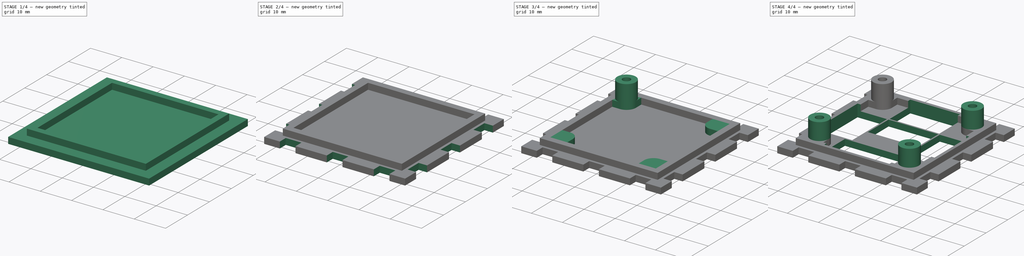
[diagram: build sequence overview — one tinted view per stage of 4, left to right]
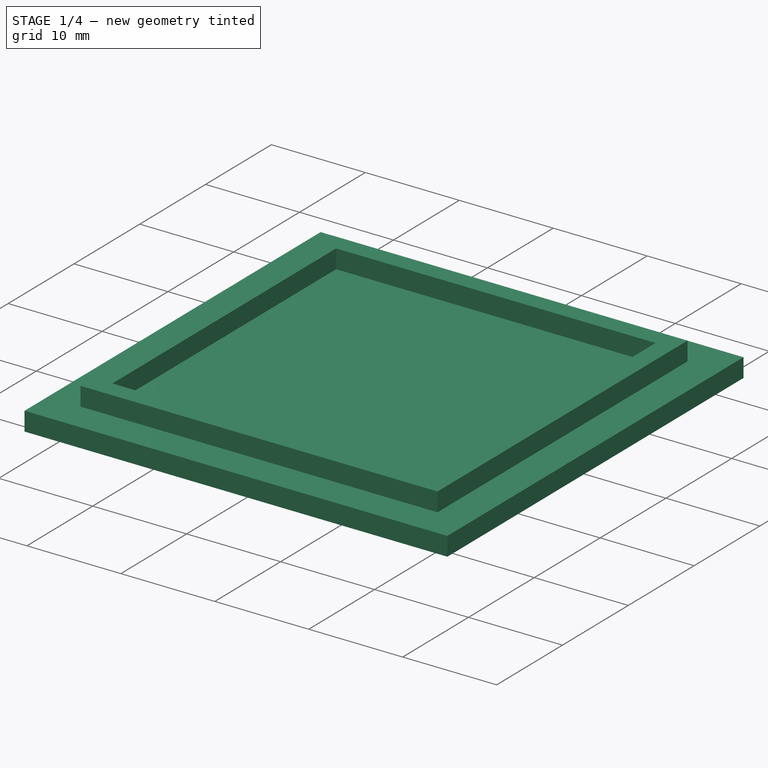
[diagram: stage 1 of 4 — iso view after this stage's code; geometry added in this stage tinted green]
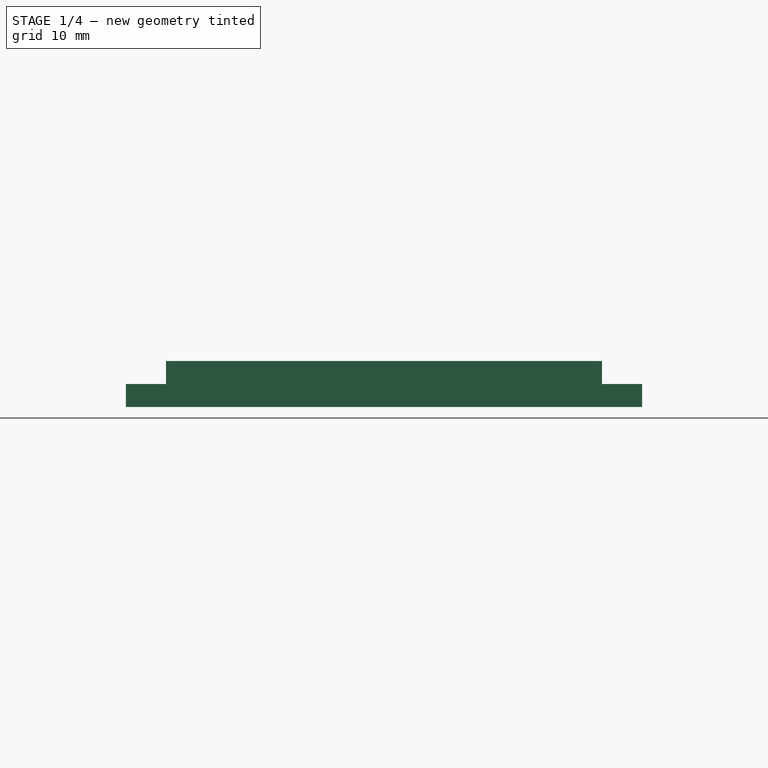
[diagram: stage 1 of 4 — front view after this stage's code; geometry added in this stage tinted green]
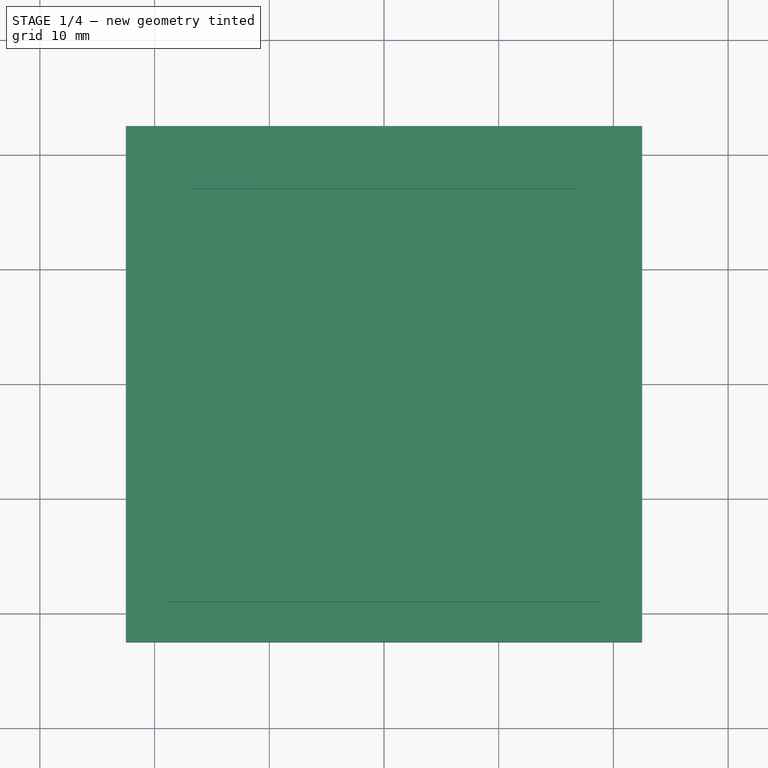
[diagram: stage 1 of 4 — top view after this stage's code; geometry added in this stage tinted green]
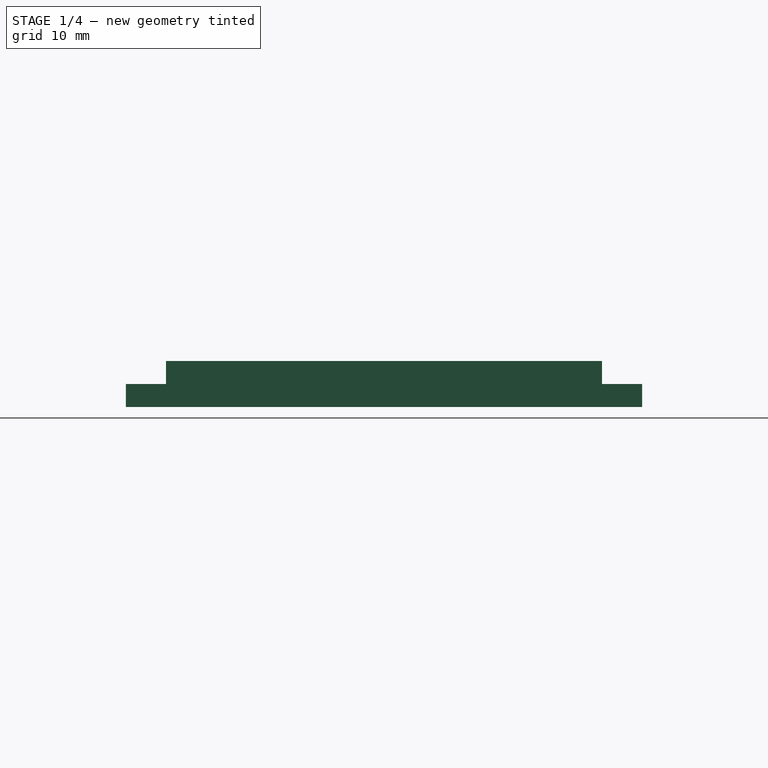
[diagram: stage 1 of 4 — right view after this stage's code; geometry added in this stage tinted green]
FCSTD DOCUMENT  (FreeCAD 0.16R6710 (Git))
Label: top
License: All rights reserved
LicenseURL: http://en.wikipedia.org/wiki/All_rights_reserved
objects: Sketcher::SketchObject×6, PartDesign::Pad×4, PartDesign::PolarPattern×3, PartDesign::Pocket×2, PartDesign::LinearPattern×1, PartDesign::MultiTransform×1
note: 23 computed .brp shape members not serialized (recipe doc carries the construction recipe); baked Part::Feature solids carry a one-line shape summary decoded from their .brp

FEATURE [Sketcher::SketchObject] Sketch
  sketch-geometry (4):
    g0: LineSegment StartX=-22.5 StartY=22.5 StartZ=0 EndX=22.5 EndY=22.5 EndZ=0
    g1: LineSegment StartX=22.5 StartY=22.5 StartZ=0 EndX=22.5 EndY=-22.5 EndZ=0
    g2: LineSegment StartX=22.5 StartY=-22.5 StartZ=0 EndX=-22.5 EndY=-22.5 EndZ=0
    g3: LineSegment StartX=-22.5 StartY=-22.5 StartZ=0 EndX=-22.5 EndY=22.5 EndZ=0
  constraints (12):
    c: Coincident(g0,g1)
    c: Coincident(g1,g2)
    c: Coincident(g2,g3)
    c: Coincident(g3,g0)
    c: Horizontal(g0)
    c: Horizontal(g2)
    c: Vertical(g1)
    c: Vertical(g3)
    c: Symmetric(g0,g0,g-2)
    c: Symmetric(g0,g2,g-1)
    c: DistanceX(g0,g0) = 45
    c: DistanceY(g2,g0) = 45
FEATURE [PartDesign::Pad] Pad
  Length = 2
  Length2 = 100
  Sketch = -> Sketch
  Type = 0
FEATURE [Sketcher::SketchObject] Sketch001
  Placement = pos=(0,0,2) rot=(0,0,1;0rad)
  Support = -> Pad [Face6]
  sketch-geometry (8):
    g0: LineSegment StartX=-19 StartY=19 StartZ=0 EndX=19 EndY=19 EndZ=0
    g1: LineSegment StartX=19 StartY=19 StartZ=0 EndX=19 EndY=-19 EndZ=0
    g2: LineSegment StartX=19 StartY=-19 StartZ=0 EndX=-19 EndY=-19 EndZ=0
    g3: LineSegment StartX=-19 StartY=-19 StartZ=0 EndX=-19 EndY=19 EndZ=0
    g4: LineSegment StartX=-17 StartY=17 StartZ=0 EndX=17 EndY=17 EndZ=0
    g5: LineSegment StartX=17 StartY=17 StartZ=0 EndX=17 EndY=-17 EndZ=0
    g6: LineSegment StartX=17 StartY=-17 StartZ=0 EndX=-17 EndY=-17 EndZ=0
    g7: LineSegment StartX=-17 StartY=-17 StartZ=0 EndX=-17 EndY=17 EndZ=0
  constraints (24):
    c: Coincident(g0,g1)
    c: Coincident(g1,g2)
    c: Coincident(g2,g3)
    c: Coincident(g3,g0)
    c: Horizontal(g0)
    c: Horizontal(g2)
    c: Vertical(g1)
    c: Vertical(g3)
    c: Coincident(g4,g5)
    c: Coincident(g5,g6)
    c: Coincident(g6,g7)
    c: Coincident(g7,g4)
    c: Horizontal(g4)
    c: Horizontal(g6)
    c: Vertical(g5)
    c: Vertical(g7)
    c: Symmetric(g0,g0,g-2)
    c: Symmetric(g0,g2,g-1)
    c: Symmetric(g4,g4,g-2)
    c: Symmetric(g4,g5,g-1)
    c: DistanceX(g0,g0) = 38
    c: DistanceY(g2,g0) = 38
    c: DistanceX(g0,g4) = 2
    c: DistanceY(g4,g0) = 2
FEATURE [PartDesign::Pad] Pad001
  Length = 2
  Length2 = 100
  Sketch = -> Sketch001
  Type = 0
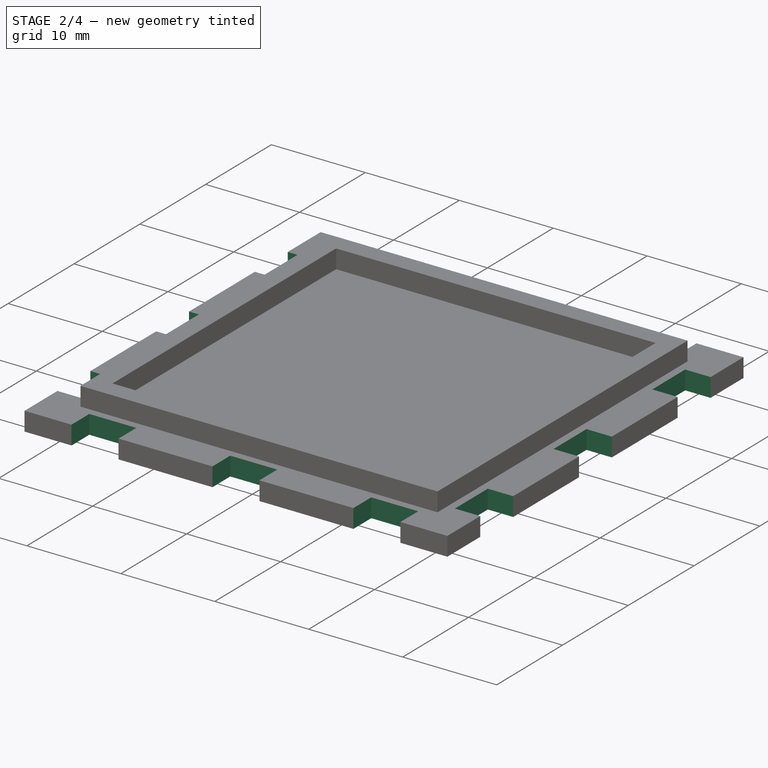
[diagram: stage 2 of 4 — iso view after this stage's code; geometry added in this stage tinted green]
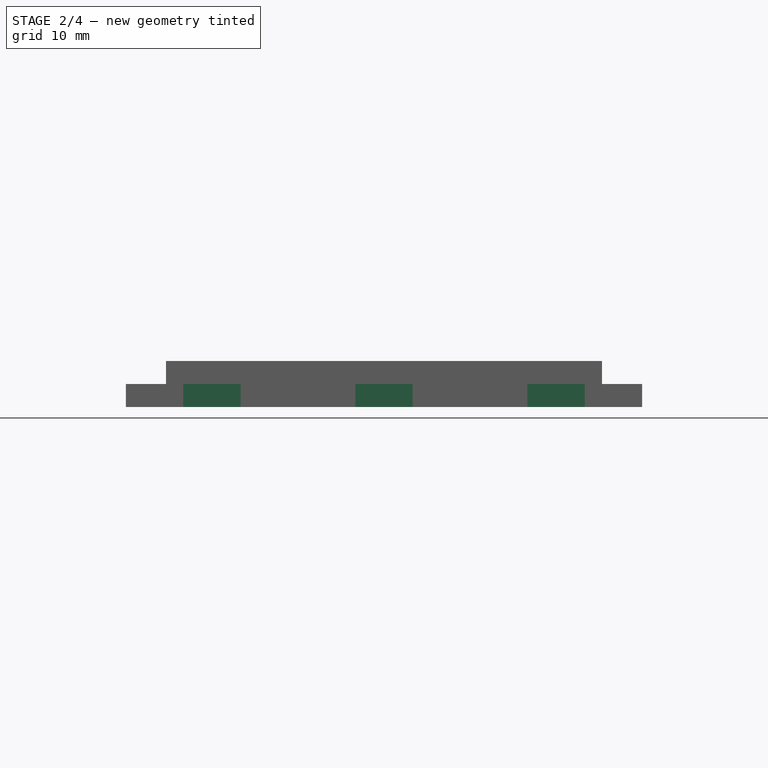
[diagram: stage 2 of 4 — front view after this stage's code; geometry added in this stage tinted green]
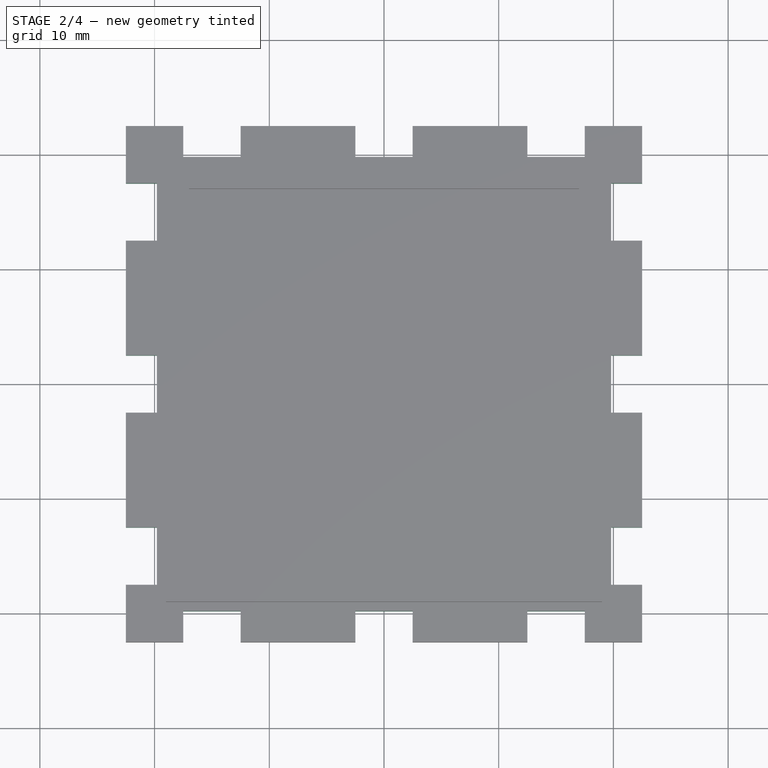
[diagram: stage 2 of 4 — top view after this stage's code; geometry added in this stage tinted green]
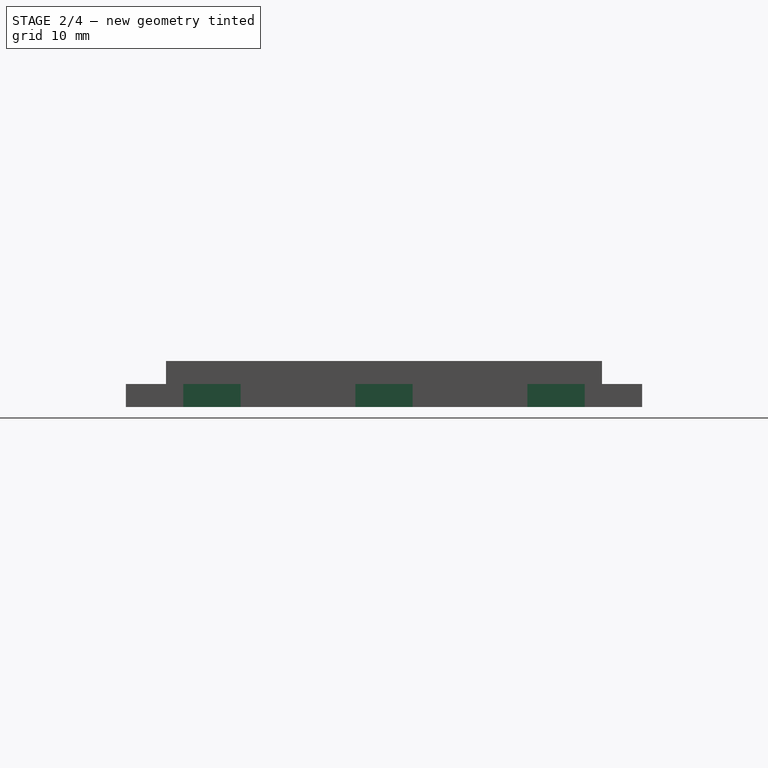
[diagram: stage 2 of 4 — right view after this stage's code; geometry added in this stage tinted green]
FEATURE [Sketcher::SketchObject] Sketch002
  Placement = pos=(0,0,0) rot=(1,0,0;3.14159rad)
  Support = -> Pad001 [Face4]
  sketch-geometry (5):
    g0: LineSegment StartX=-22.5 StartY=-12.5 StartZ=0 EndX=-19.8 EndY=-12.5 EndZ=0
    g1: LineSegment StartX=-19.8 StartY=-12.5 StartZ=0 EndX=-19.8 EndY=-17.5 EndZ=0
    g2: LineSegment StartX=-19.8 StartY=-17.5 StartZ=0 EndX=-22.5 EndY=-17.5 EndZ=0
    g3: LineSegment StartX=-22.5 StartY=-17.5 StartZ=0 EndX=-22.5 EndY=-12.5 EndZ=0
    g4: GeomPoint [constr] X=-22.5 Y=-15 Z=0
  constraints (14):
    c: Coincident(g0,g1)
    c: Coincident(g1,g2)
    c: Coincident(g2,g3)
    c: Coincident(g3,g0)
    c: Horizontal(g0)
    c: Horizontal(g2)
    c: Vertical(g1)
    c: Vertical(g3)
    c: PointOnObject(g4,g3)
    c: Symmetric(g0,g2,g4)
    c: DistanceY(g2,g0) = 5
    c: DistanceX(g0,g0) = 2.7
    c: DistanceX(g4,g-1) = 22.5
    c: DistanceY(g4,g-1) = 15
FEATURE [PartDesign::Pocket] Pocket
  Length = 5
  Sketch = -> Sketch002
  Type = 1
FEATURE [PartDesign::LinearPattern] LinearPattern
  Direction = -> Sketch002 [V_Axis]
  Length = 30
  Occurrences = 3
FEATURE [PartDesign::PolarPattern] PolarPattern
  Angle = 360
  Axis = -> Sketch002 [N_Axis]
  Occurrences = 4
FEATURE [PartDesign::MultiTransform] MultiTransform
  Originals = -> [Pocket]
  Transformations = -> [LinearPattern,PolarPattern]
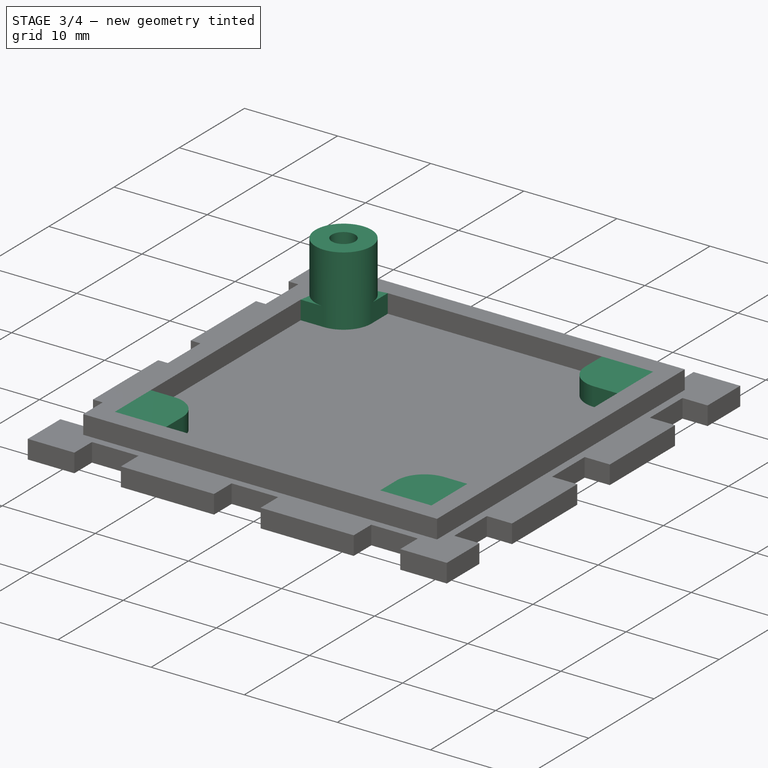
[diagram: stage 3 of 4 — iso view after this stage's code; geometry added in this stage tinted green]
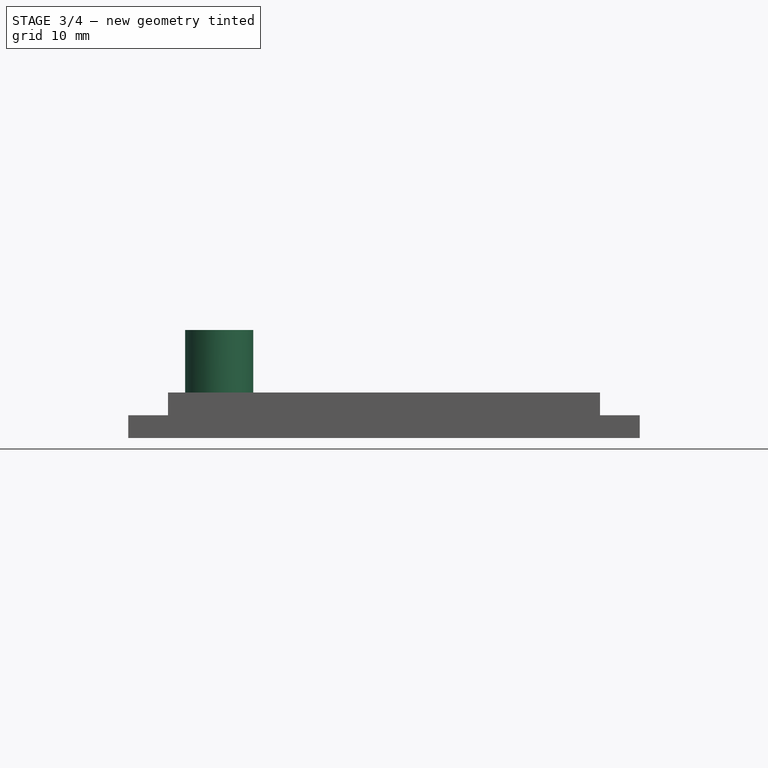
[diagram: stage 3 of 4 — front view after this stage's code; geometry added in this stage tinted green]
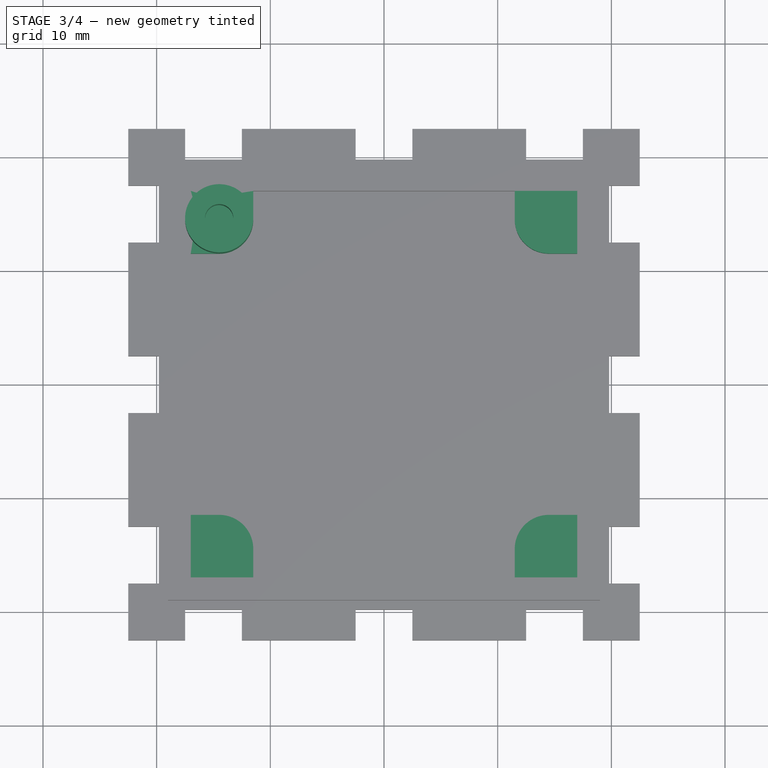
[diagram: stage 3 of 4 — top view after this stage's code; geometry added in this stage tinted green]
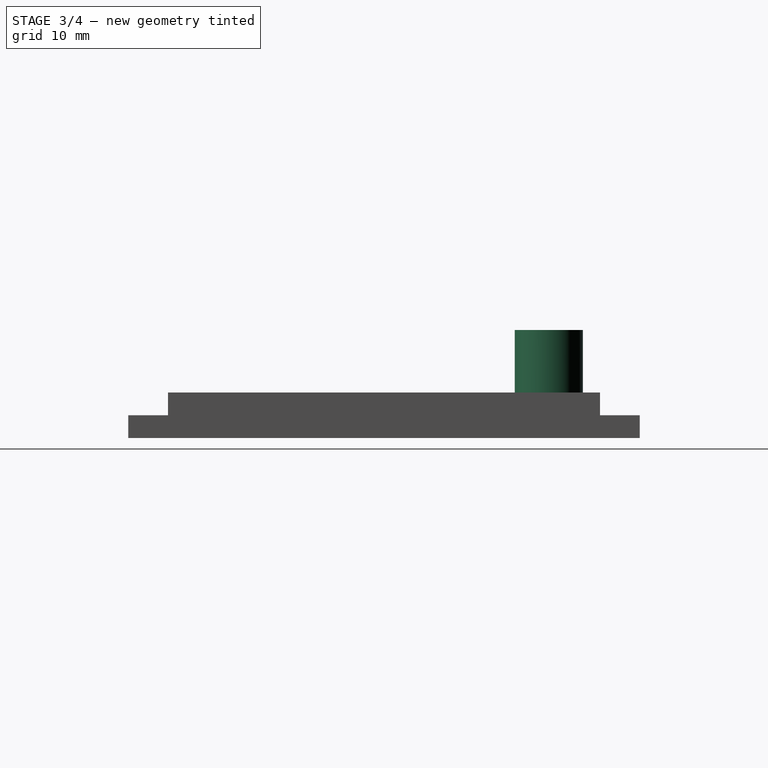
[diagram: stage 3 of 4 — right view after this stage's code; geometry added in this stage tinted green]
FEATURE [Sketcher::SketchObject] Sketch003
  Placement = pos=(0,0,2) rot=(0,0,1;0rad)
  Support = -> MultiTransform [Face64]
  sketch-geometry (6):
    g0: ArcOfCircle CenterX=-14.5 CenterY=14.5 CenterZ=0 NormalX=0 NormalY=0 NormalZ=1 Radius=3 StartAngle=4.71239 EndAngle=6.28318
    g1: LineSegment StartX=-14.5 StartY=11.5 StartZ=0 EndX=-17 EndY=11.5 EndZ=0
    g2: LineSegment StartX=-17 StartY=11.5 StartZ=0 EndX=-17 EndY=17 EndZ=0
    g3: LineSegment StartX=-17 StartY=17 StartZ=0 EndX=-11.5 EndY=17 EndZ=0
    g4: LineSegment StartX=-11.5 StartY=17 StartZ=0 EndX=-11.5 EndY=14.5 EndZ=0
    g5: LineSegment [constr] StartX=-14.5 StartY=14.5 StartZ=0 EndX=-14.5 EndY=11.5 EndZ=0
  constraints (18):
    c: Coincident(g1,g0)
    c: Coincident(g2,g1)
    c: Coincident(g3,g2)
    c: Horizontal(g3)
    c: Coincident(g4,g3)
    c: Coincident(g4,g0)
    c: Tangent(g4,g0)
    c: Vertical(g2)
    c: Horizontal(g1)
    c: Vertical(g4)
    c: Radius(g0) = 3
    c: DistanceX(g2,g3) = 5.5
    c: DistanceY(g1,g2) = 5.5
    c: Coincident(g5,g0)
    c: Coincident(g5,g0)
    c: Vertical(g5)
    c: DistanceX(g0,g-1) = 14.5
    c: DistanceY(g-1,g0) = 14.5
FEATURE [PartDesign::Pad] Pad002
  Length = 2
  Length2 = 100
  Sketch = -> Sketch003
  Type = 0
FEATURE [PartDesign::PolarPattern] PolarPattern001
  Angle = 360
  Axis = -> Sketch003 [N_Axis]
  Occurrences = 4
  Originals = -> [Pad002]
FEATURE [Sketcher::SketchObject] Sketch004
  Placement = pos=(0,0,4) rot=(0,0,1;0rad)
  Support = -> PolarPattern001 [Face60]
  sketch-geometry (2):
    g0: Circle CenterX=-14.5 CenterY=14.5 CenterZ=0 NormalX=0 NormalY=0 NormalZ=1 Radius=3
    g1: Circle CenterX=-14.5 CenterY=14.5 CenterZ=0 NormalX=0 NormalY=0 NormalZ=1 Radius=1.25
  constraints (5):
    c: Coincident(g1,g0)
    c: Radius(g0) = 3
    c: Radius(g1) = 1.25
    c: DistanceX(g0,g-1) = 14.5
    c: DistanceY(g-1,g0) = 14.5
FEATURE [PartDesign::Pad] Pad003
  Length = 5.5
  Length2 = 100
  Sketch = -> Sketch004
  Type = 0
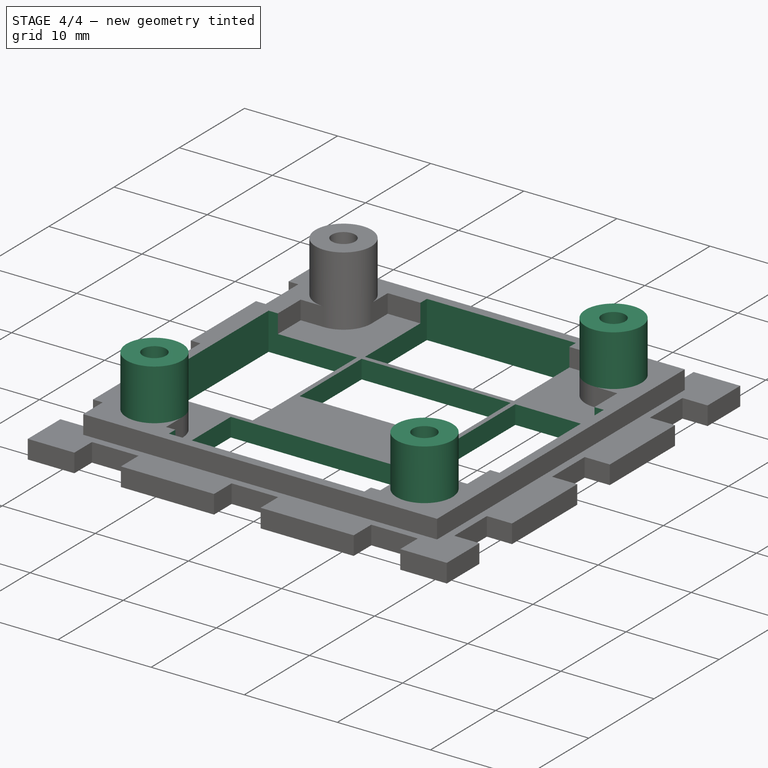
[diagram: stage 4 of 4 — iso view after this stage's code; geometry added in this stage tinted green]
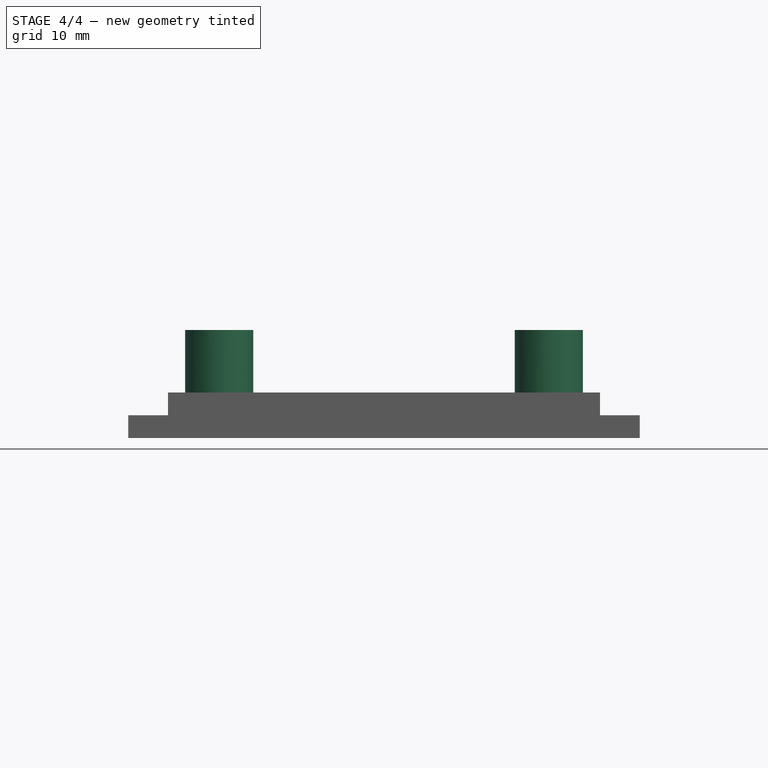
[diagram: stage 4 of 4 — front view after this stage's code; geometry added in this stage tinted green]
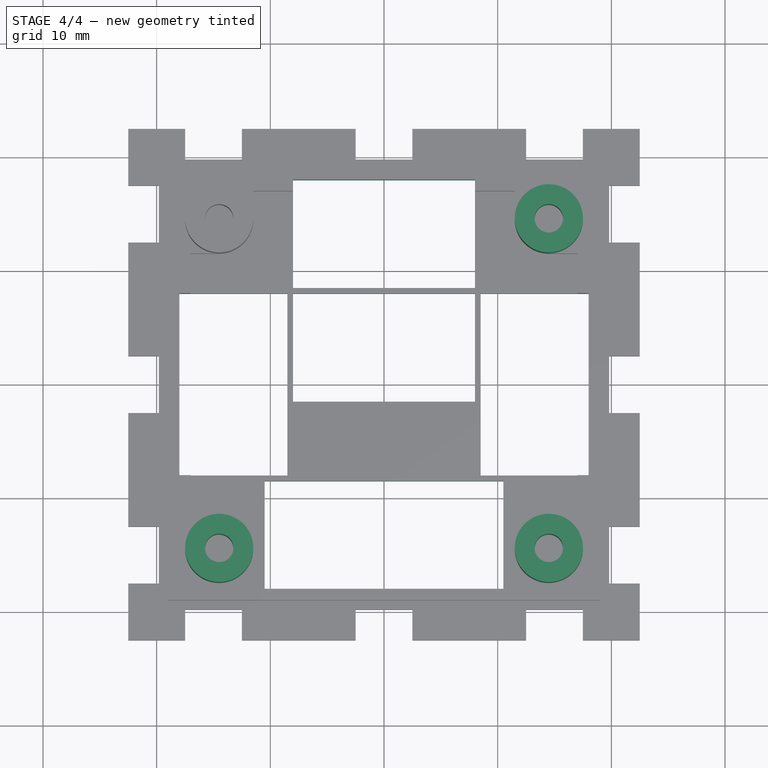
[diagram: stage 4 of 4 — top view after this stage's code; geometry added in this stage tinted green]
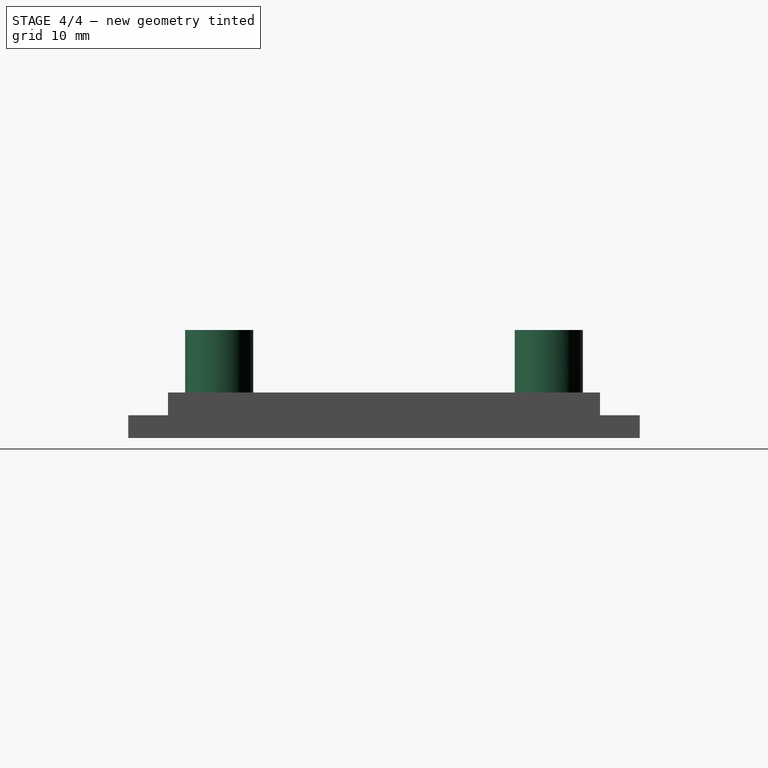
[diagram: stage 4 of 4 — right view after this stage's code; geometry added in this stage tinted green]
FEATURE [PartDesign::PolarPattern] PolarPattern002
  Angle = 360
  Axis = -> Sketch004 [N_Axis]
  Occurrences = 4
  Originals = -> [Pad003]
FEATURE [Sketcher::SketchObject] Sketch005
  Placement = pos=(0,0,0) rot=(1,0,0;3.14159rad)
  Support = -> PolarPattern002 [Face2]
  sketch-geometry (21):
    g0: LineSegment StartX=-8 StartY=-8.5 StartZ=0 EndX=8 EndY=-8.5 EndZ=0
    g1: LineSegment StartX=8 StartY=-8.5 StartZ=0 EndX=8 EndY=-18 EndZ=0
    g2: LineSegment StartX=8 StartY=-18 StartZ=0 EndX=-8 EndY=-18 EndZ=0
    g3: LineSegment StartX=-8 StartY=-18 StartZ=0 EndX=-8 EndY=-8.5 EndZ=0
    g4: LineSegment StartX=-8 StartY=1.5 StartZ=0 EndX=8 EndY=1.5 EndZ=0
    g5: LineSegment StartX=8 StartY=1.5 StartZ=0 EndX=8 EndY=-8 EndZ=0
    g6: LineSegment StartX=8 StartY=-8 StartZ=0 EndX=-8 EndY=-8 EndZ=0
    g7: LineSegment StartX=-8 StartY=-8 StartZ=0 EndX=-8 EndY=1.5 EndZ=0
    g8: LineSegment StartX=-18 StartY=8 StartZ=0 EndX=-8.5 EndY=8 EndZ=0
    g9: LineSegment StartX=-8.5 StartY=8 StartZ=0 EndX=-8.5 EndY=-8 EndZ=0
    g10: LineSegment StartX=-8.5 StartY=-8 StartZ=0 EndX=-18 EndY=-8 EndZ=0
    g11: LineSegment StartX=-18 StartY=-8 StartZ=0 EndX=-18 EndY=8 EndZ=0
    g12: LineSegment StartX=8.5 StartY=8 StartZ=0 EndX=18 EndY=8 EndZ=0
    g13: LineSegment StartX=18 StartY=8 StartZ=0 EndX=18 EndY=-8 EndZ=0
    g14: LineSegment StartX=18 StartY=-8 StartZ=0 EndX=8.5 EndY=-8 EndZ=0
    g15: LineSegment StartX=8.5 StartY=-8 StartZ=0 EndX=8.5 EndY=8 EndZ=0
    g16: LineSegment StartX=-10.5 StartY=18 StartZ=0 EndX=10.5 EndY=18 EndZ=0
    g17: LineSegment StartX=10.5 StartY=18 StartZ=0 EndX=10.5 EndY=8.5 EndZ=0
    g18: LineSegment StartX=10.5 StartY=8.5 StartZ=0 EndX=-10.5 EndY=8.5 EndZ=0
    g19: LineSegment StartX=-10.5 StartY=8.5 StartZ=0 EndX=-10.5 EndY=18 EndZ=0
    g20: LineSegment [constr] StartX=-8 StartY=-8 StartZ=0 EndX=-8 EndY=-8.5 EndZ=0
  constraints (61):
    c: Coincident(g0,g1)
    c: Coincident(g1,g2)
    c: Coincident(g2,g3)
    c: Coincident(g3,g0)
    c: Horizontal(g0)
    c: Horizontal(g2)
    c: Vertical(g1)
    c: Vertical(g3)
    c: Coincident(g4,g5)
    c: Coincident(g5,g6)
    c: Coincident(g6,g7)
    c: Coincident(g7,g4)
    c: Horizontal(g4)
    c: Horizontal(g6)
    c: Vertical(g5)
    c: Vertical(g7)
    c: Coincident(g8,g9)
    c: Coincident(g9,g10)
    c: Coincident(g10,g11)
    c: Coincident(g11,g8)
    c: Horizontal(g8)
    c: Horizontal(g10)
    c: Vertical(g9)
    c: Vertical(g11)
    c: Coincident(g12,g13)
    c: Coincident(g13,g14)
    c: Coincident(g14,g15)
    c: Horizontal(g12)
    c: Horizontal(g14)
    c: Vertical(g13)
    c: Vertical(g15)
    c: Coincident(g16,g17)
    c: Coincident(g17,g18)
    c: Coincident(g18,g19)
    c: Coincident(g19,g16)
    c: Horizontal(g16)
    c: Horizontal(g18)
    c: Vertical(g17)
    c: Vertical(g19)
    c: Symmetric(g16,g16,g-2)
    c: Symmetric(g8,g10,g-1)
    c: Symmetric(g12,g13,g-1)
    c: Symmetric(g6,g5,g-2)
    c: Symmetric(g2,g1,g-2)
    c: DistanceX(g4,g4) = 16
    c: Coincident(g20,g6)
    c: Coincident(g20,g0)
    c: Vertical(g20)
    c: DistanceY(g2,g0) = 9.5
    c: DistanceY(g6,g4) = 9.5
    c: DistanceY(g1,g-1) = 18
    c: DistanceX(g16,g16) = 21
    c: DistanceY(g17,g16) = 9.5
    c: DistanceX(g-1,g12) = 18
    c: Symmetric(g8,g12,g-2)
    c: Symmetric(g8,g12,g-2)
    c: DistanceY(g10,g8) = 16
    c: DistanceY(g-1,g16) = 18
    c: DistanceX(g8,g8) = 9.5
    c: Coincident(g15,g12)
    c: DistanceY(g1,g5) = 10
FEATURE [PartDesign::Pocket] Pocket001
  Length = 5
  Sketch = -> Sketch005
  Type = 0
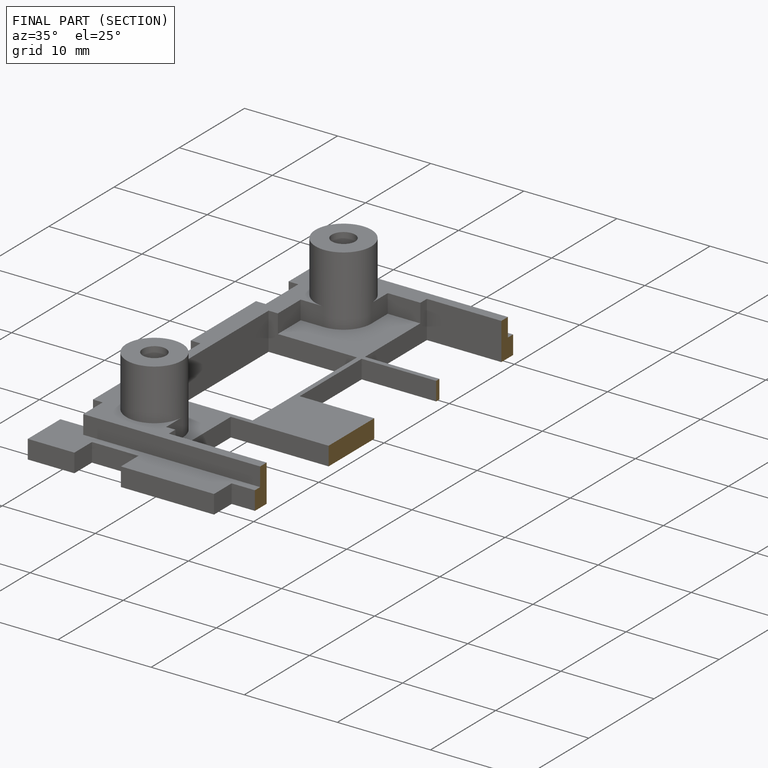
[diagram: finished part — half-section view (interior)]
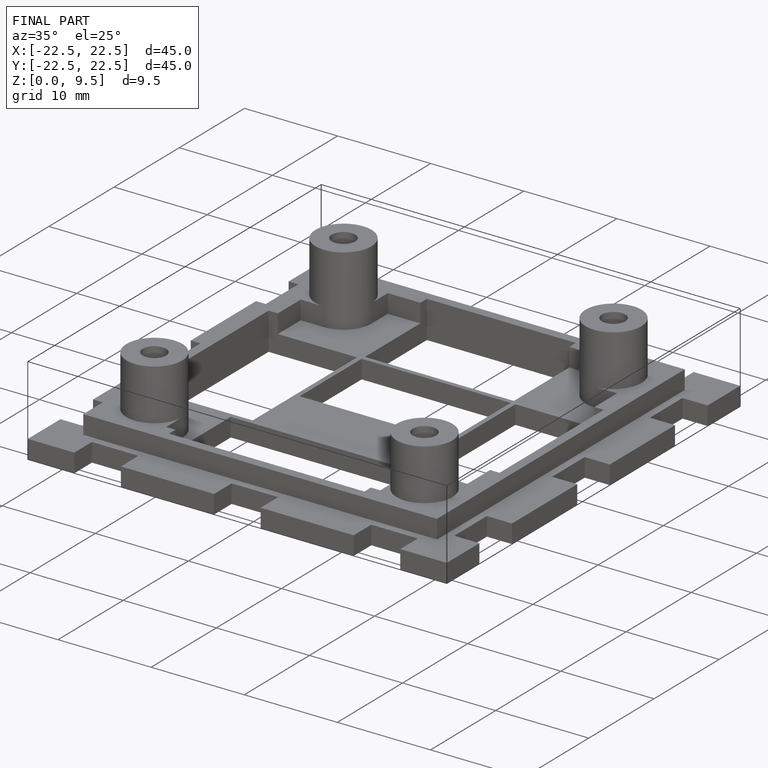
[diagram: finished part — iso view with bounding-box wireframe]
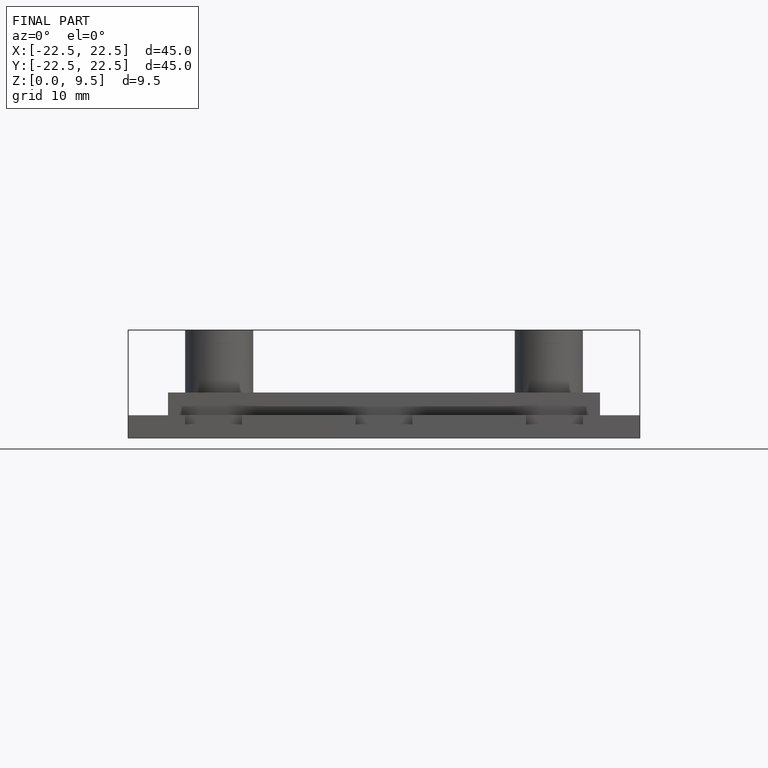
[diagram: finished part — front view with bounding-box wireframe]
